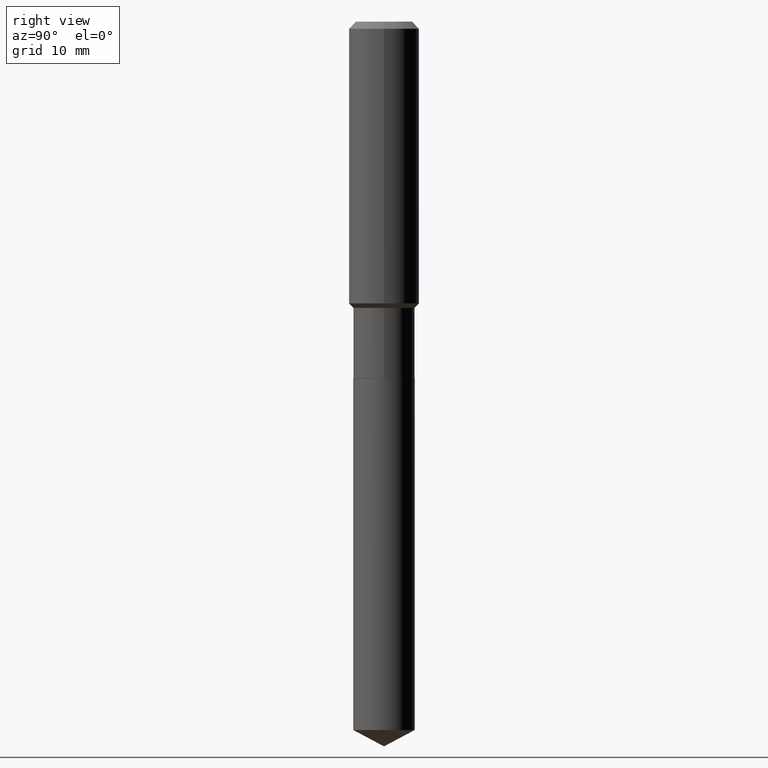
[diagram: clean part render]
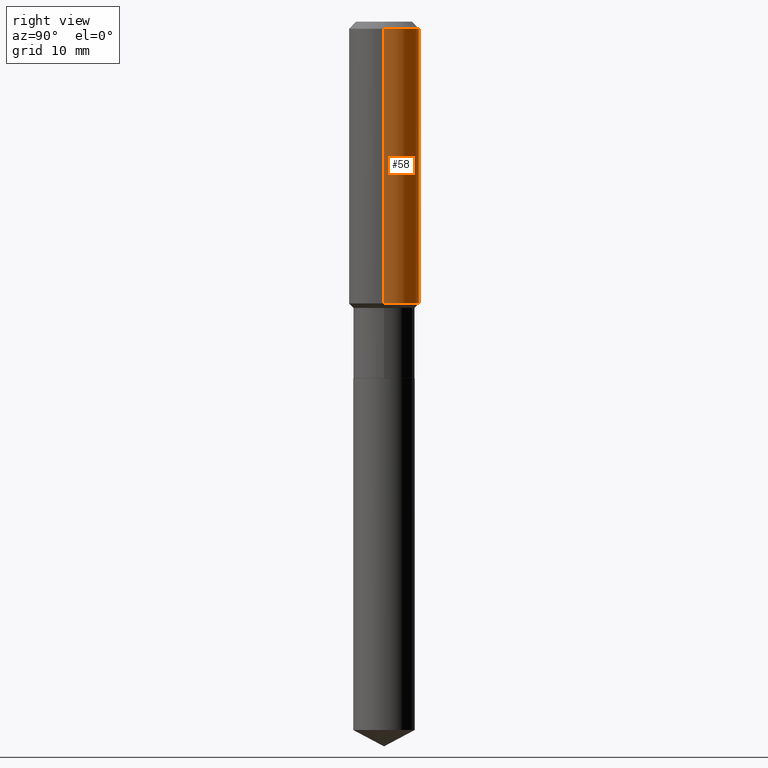
[diagram: same view with one face highlighted and labeled with its STEP entity id]
A machine part, right view. The second image highlights one B-rep face of the part: STEP entity #58.
In plain terms, the highlighted cylindrical surface (edge-blend (fillet) strip) has radius 5 mm, axis along (-0, 0, 1).
Its self-contained STEP definition (entity closure, byte-faithful):
#15 = CARTESIAN_POINT ( 'NONE',  ( -0.1968500000000001082, 1.398703375343757985E-15, -9.682923725166787881E-30 ) ) ;
#28 = VECTOR ( 'NONE', #43, 39.37007874015748143 ) ;
#34 = DIRECTION ( 'NONE',  ( -2.445468806185136877E-29, 3.491481338843145188E-15, 1.000000000000000000 ) ) ;
#37 = CARTESIAN_POINT ( 'NONE',  ( -0.1968500000000002192, -4.105442381275518145E-15, -1.576449999999999685 ) ) ;
#43 = DIRECTION ( 'NONE',  ( -2.445468806185136877E-29, 3.491481338843145188E-15, 1.000000000000000000 ) ) ;
#57 = ORIENTED_EDGE ( 'NONE', *, *, #398, .F. ) ;
#58 = ADVANCED_FACE ( 'NONE', ( #126 ), #312, .T. ) ;
#59 = LINE ( 'NONE', #15, #28 ) ;
#81 = AXIS2_PLACEMENT_3D ( 'NONE', #273, #329, #407 ) ;
#111 = EDGE_CURVE ( 'NONE', #389, #427, #356, .T. ) ;
#126 = FACE_OUTER_BOUND ( 'NONE', #349, .T. ) ;
#140 = CARTESIAN_POINT ( 'NONE',  ( 0.1968500000000000250, -1.512055823412797189E-15, -0.03937000000000027283 ) ) ;
#143 = AXIS2_PLACEMENT_3D ( 'NONE', #167, #387, #280 ) ;
#167 = CARTESIAN_POINT ( 'NONE',  ( 0.000000000000000000, 0.000000000000000000, 0.000000000000000000 ) ) ;
#202 = VERTEX_POINT ( 'NONE', #140 ) ;
#203 = VERTEX_POINT ( 'NONE', #337 ) ;
#216 = ORIENTED_EDGE ( 'NONE', *, *, #290, .T. ) ;
#273 = CARTESIAN_POINT ( 'NONE',  ( 3.855159299510557695E-29, -5.504145756619275933E-15, -1.576449999999999685 ) ) ;
#280 = DIRECTION ( 'NONE',  ( 1.000000000000000000, -6.982962677686266711E-15, 4.876176775795935793E-29 ) ) ;
#290 = EDGE_CURVE ( 'NONE', #427, #203, #59, .T. ) ;
#303 = ORIENTED_EDGE ( 'NONE', *, *, #111, .T. ) ;
#304 = CIRCLE ( 'NONE', #338, 0.1968500000000000250 ) ;
#305 = EDGE_CURVE ( 'NONE', #389, #202, #447, .T. ) ;
#310 = DIRECTION ( 'NONE',  ( -2.445468806185136597E-29, 3.491481338843145583E-15, 1.000000000000000000 ) ) ;
#312 = CYLINDRICAL_SURFACE ( 'NONE', #143, 0.1968500000000001082 ) ;
#329 = DIRECTION ( 'NONE',  ( -2.445468806185136597E-29, 3.491481338843145583E-15, 1.000000000000000000 ) ) ;
#330 = CARTESIAN_POINT ( 'NONE',  ( 9.627810689950950651E-31, -1.374596203102555808E-16, -0.03937000000000027283 ) ) ;
#334 = ORIENTED_EDGE ( 'NONE', *, *, #305, .F. ) ;
#337 = CARTESIAN_POINT ( 'NONE',  ( -0.1968500000000000250, -1.422099313121007378E-15, -0.03937000000000027283 ) ) ;
#338 = AXIS2_PLACEMENT_3D ( 'NONE', #330, #310, #457 ) ;
#349 = EDGE_LOOP ( 'NONE', ( #303, #216, #57, #334 ) ) ;
#350 = CARTESIAN_POINT ( 'NONE',  ( 0.1968500000000002192, -6.878741959721819908E-15, -1.576449999999999685 ) ) ;
#356 = CIRCLE ( 'NONE', #81, 0.1968500000000002192 ) ;
#387 = DIRECTION ( 'NONE',  ( -2.445468806185136597E-29, 3.491481338843145583E-15, 1.000000000000000000 ) ) ;
#389 = VERTEX_POINT ( 'NONE', #350 ) ;
#398 = EDGE_CURVE ( 'NONE', #202, #203, #304, .T. ) ;
#407 = DIRECTION ( 'NONE',  ( 1.000000000000000000, -6.982962677686265922E-15, 0.000000000000000000 ) ) ;
#427 = VERTEX_POINT ( 'NONE', #37 ) ;
#447 = LINE ( 'NONE', #454, #477 ) ;
#454 = CARTESIAN_POINT ( 'NONE',  ( 0.1968500000000001082, -1.374596203102542397E-15, 9.598753983154305062E-30 ) ) ;
#457 = DIRECTION ( 'NONE',  ( 1.000000000000000000, -6.982962677686265922E-15, 0.000000000000000000 ) ) ;
#477 = VECTOR ( 'NONE', #34, 39.37007874015748143 ) ;